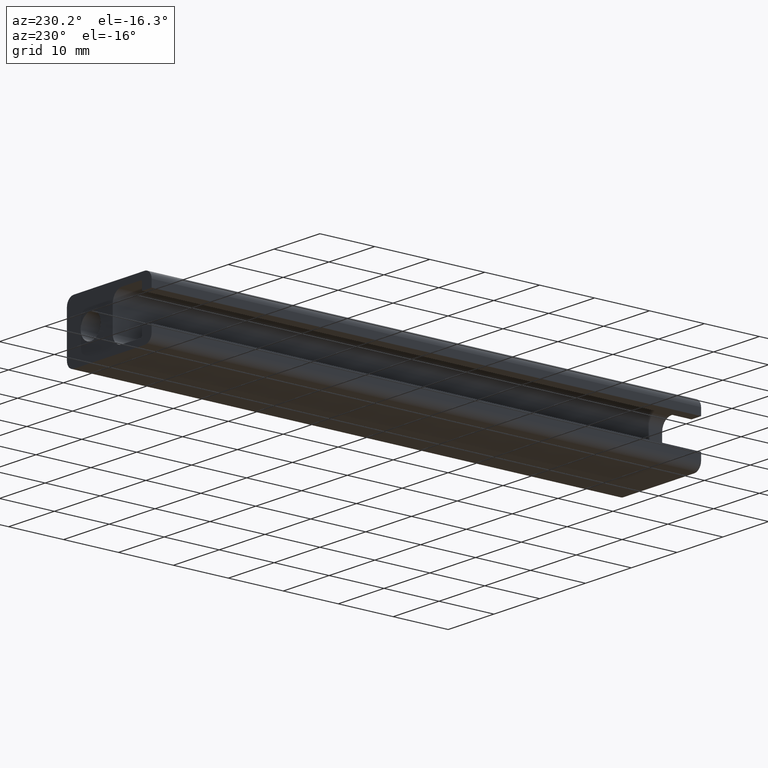
[diagram: clean part render]
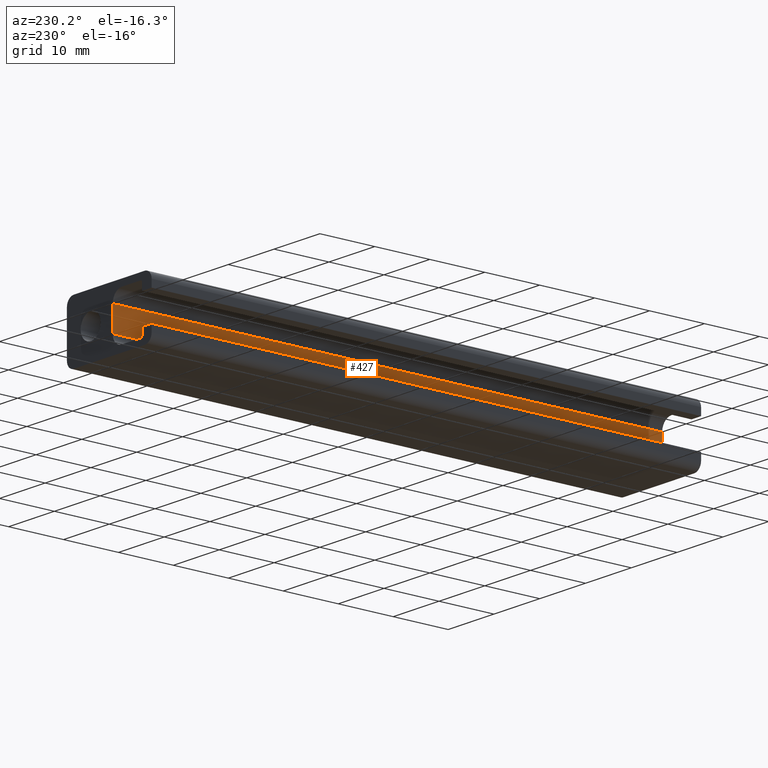
[diagram: same view with one face highlighted and labeled with its STEP entity id]
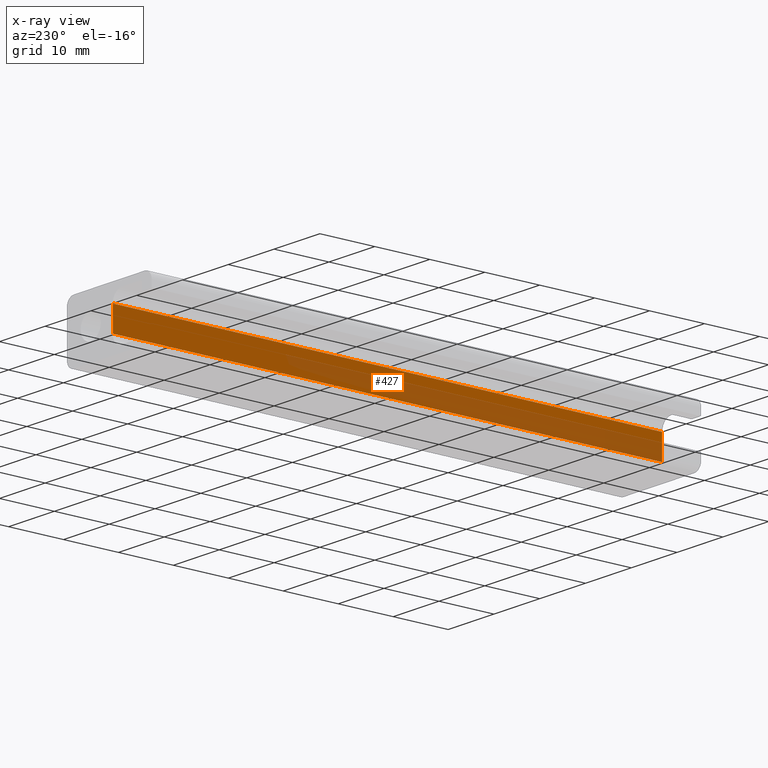
[diagram: x-ray of the same camera — body ghosted, the highlighted face saturated]
A machine part, auxiliary view. The second image highlights one B-rep face of the part: STEP entity #427.
The next image is the same camera in x-ray: the body ghosted, the highlighted face saturated — about 40% of this face is hidden behind the body in this view.
In plain terms, the highlighted planar face has unit normal (-1, 0, 0).
Its self-contained STEP definition (entity closure, byte-faithful):
#19=LINE('',#638,#63);
#20=LINE('',#641,#64);
#21=LINE('',#643,#65);
#22=LINE('',#644,#66);
#63=VECTOR('',#510,100.);
#64=VECTOR('',#513,4.40000000000111);
#65=VECTOR('',#514,4.40000000000111);
#66=VECTOR('',#515,100.);
#104=PLANE('',#456);
#123=FACE_OUTER_BOUND('',#147,.T.);
#147=EDGE_LOOP('',(#301,#302,#303,#304));
#193=VERTEX_POINT('',#634);
#194=VERTEX_POINT('',#636);
#195=VERTEX_POINT('',#640);
#196=VERTEX_POINT('',#642);
#237=EDGE_CURVE('',#193,#194,#19,.T.);
#238=EDGE_CURVE('',#193,#195,#20,.T.);
#239=EDGE_CURVE('',#196,#194,#21,.T.);
#240=EDGE_CURVE('',#195,#196,#22,.T.);
#301=ORIENTED_EDGE('',*,*,#238,.F.);
#302=ORIENTED_EDGE('',*,*,#237,.T.);
#303=ORIENTED_EDGE('',*,*,#239,.F.);
#304=ORIENTED_EDGE('',*,*,#240,.F.);
#427=ADVANCED_FACE('',(#123),#104,.T.);
#456=AXIS2_PLACEMENT_3D('',#639,#511,#512);
#510=DIRECTION('',(0.,1.,0.));
#511=DIRECTION('center_axis',(-1.,0.,1.00929365874989E-15));
#512=DIRECTION('ref_axis',(1.01030295240889E-15,0.,1.));
#513=DIRECTION('',(-1.00929365874989E-15,0.,-1.));
#514=DIRECTION('',(1.00929365874989E-15,0.,1.));
#515=DIRECTION('',(0.,1.,0.));
#634=CARTESIAN_POINT('',(-0.749999999999762,0.,2.20000000000027));
#636=CARTESIAN_POINT('',(-0.749999999999762,100.,2.20000000000027));
#638=CARTESIAN_POINT('',(-0.749999999999762,0.,2.20000000000027));
#639=CARTESIAN_POINT('Origin',(-0.749999999999766,0.,-2.20000000000084));
#640=CARTESIAN_POINT('',(-0.749999999999766,0.,-2.20000000000084));
#641=CARTESIAN_POINT('',(-0.749999999999762,0.,2.20000000000027));
#642=CARTESIAN_POINT('',(-0.749999999999766,100.,-2.20000000000084));
#643=CARTESIAN_POINT('',(-0.749999999999762,100.,2.20000000000027));
#644=CARTESIAN_POINT('',(-0.749999999999766,0.,-2.20000000000084));